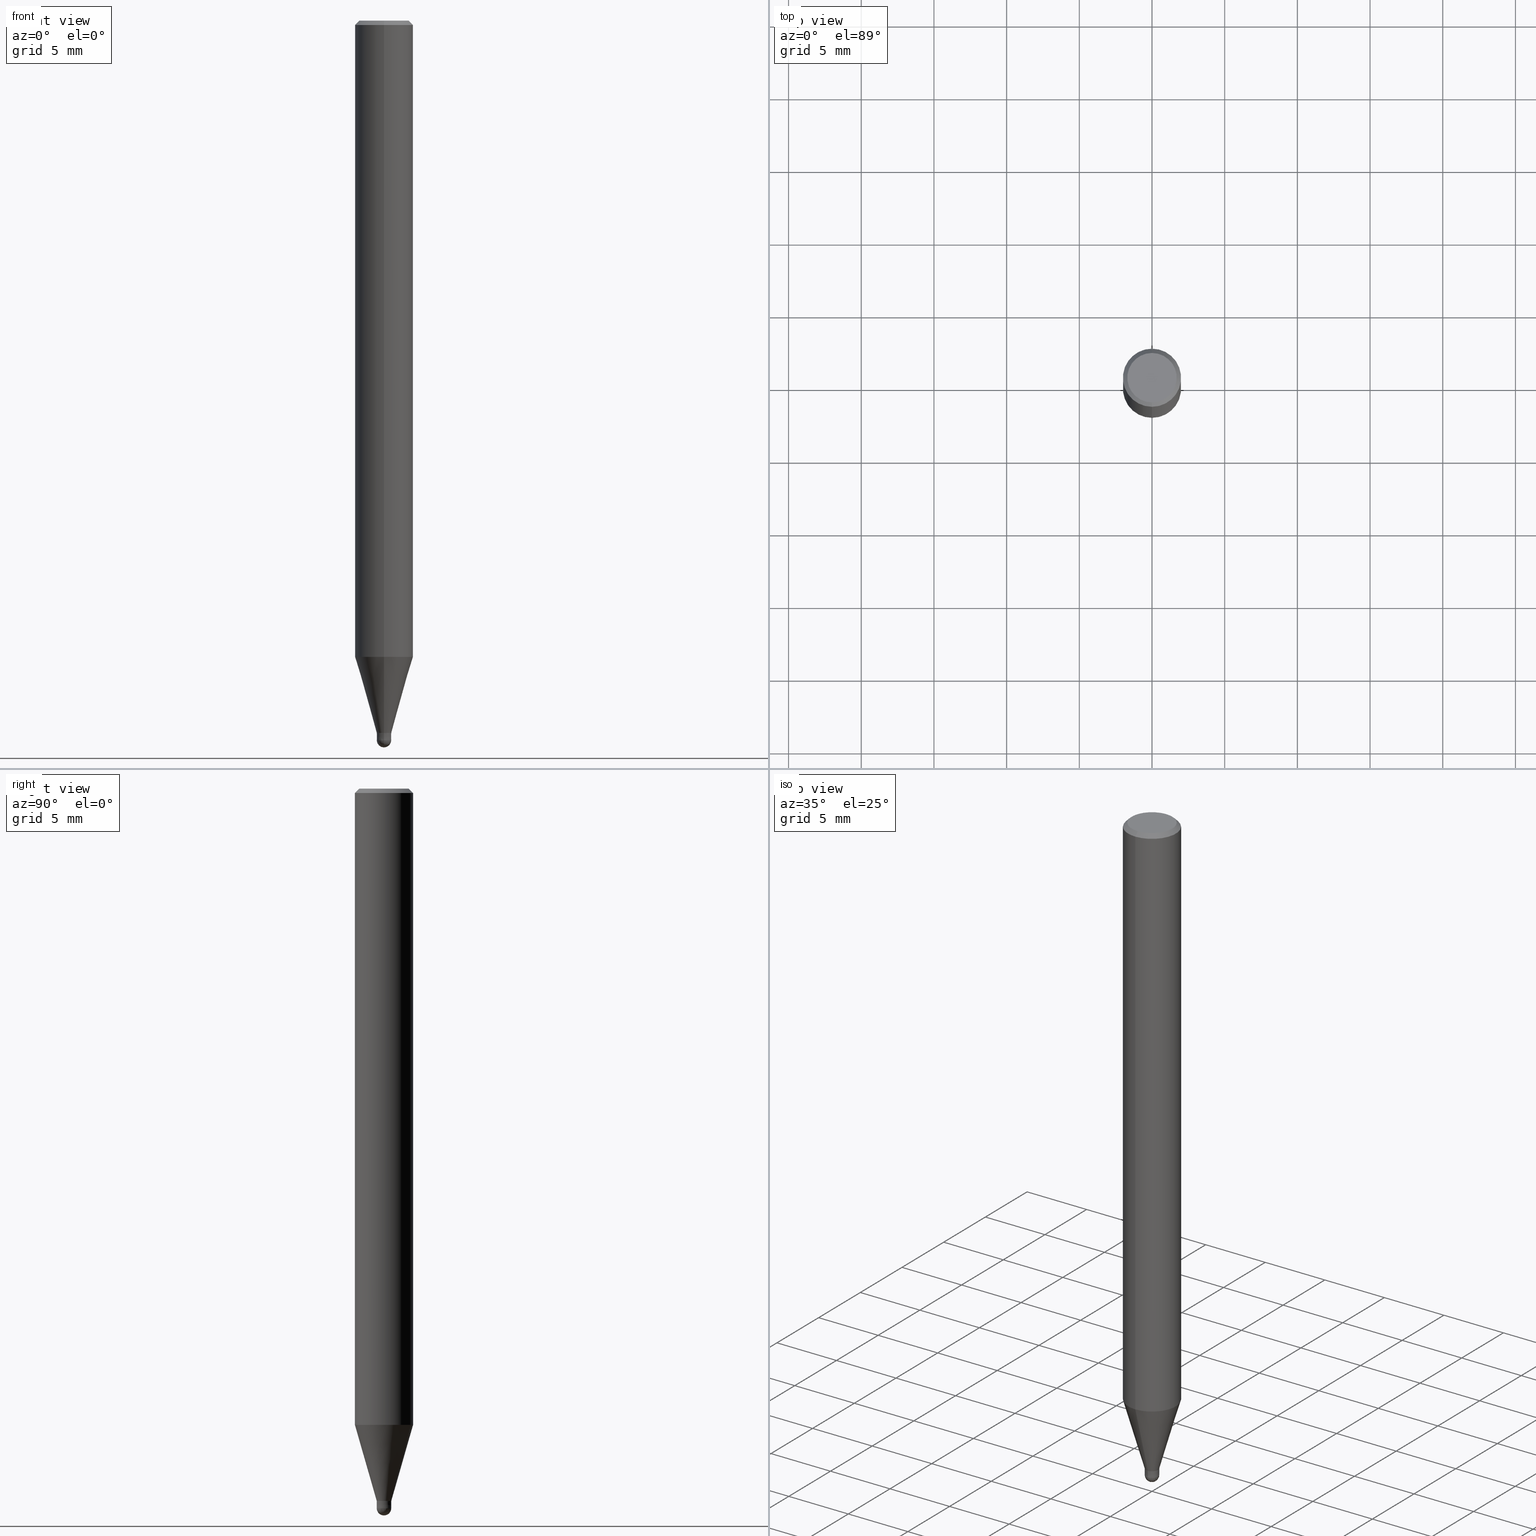
[diagram: canonical four-view strip — front | top / right | iso, engineering-drawing reading convention]
A machine part, canonical four-view strip (front | top / right | iso — engineering-drawing reading convention). The complete STEP part file that produces these views, byte-faithful:
ISO-10303-21;
HEADER;
FILE_DESCRIPTION(('no description'),'unknown implementation level');
FILE_NAME('HSB2010-0100-Huellk.stp','  ',('CIMSOURCE GmbH'),('CADClick - KiM GmbH - www.kimweb.de'),'unknown preprocess','ACIS','unknown authorization');
FILE_SCHEMA(('automotive_design'));
ENDSEC;
DATA;
#1=MECHANICAL_DESIGN_GEOMETRIC_PRESENTATION_REPRESENTATION(' ',(#14,#15,#16,#17,#18,#19,#20,#21,#22,#23,#24,#25,#26,#27,#28,#29,#30,#31,#32,#33,#34,#35,#36,#37,#38,#39,#40,#41,#42,#43,#44,#45,#46,#47,#48,#49,#50,#51,#52,#53,#54,#55,#56,#57,#58,#59,#60,#61,#62,#63,#64,#65,#66),#10);
#2=PRODUCT_DEFINITION_CONTEXT('',#67,'design');
#3=APPLICATION_PROTOCOL_DEFINITION('INTERNATIONAL STANDARD','automotive_design',1994,#67);
#4=PRODUCT_CATEGORY_RELATIONSHIP('NONE','NONE',#68,#69);
#5=SHAPE_DEFINITION_REPRESENTATION(#70,#71);
#6=PRODUCT_DEFINITION_CONTEXT('',#72,'design');
#7=APPLICATION_PROTOCOL_DEFINITION('INTERNATIONAL STANDARD','automotive_design',1994,#72);
#8=PRODUCT_CATEGORY_RELATIONSHIP('NONE','NONE',#73,#74);
#9=SHAPE_DEFINITION_REPRESENTATION(#75,#76);
#10= (GEOMETRIC_REPRESENTATION_CONTEXT(3)GLOBAL_UNCERTAINTY_ASSIGNED_CONTEXT((#79))GLOBAL_UNIT_ASSIGNED_CONTEXT((#81,#82,#83))REPRESENTATION_CONTEXT('NONE','WORKSPACE'));
#14=STYLED_ITEM('',(#85),#86);
#15=STYLED_ITEM('',(#87),#88);
#16=STYLED_ITEM('',(#89),#90);
#17=STYLED_ITEM('',(#91),#92);
#18=STYLED_ITEM('',(#93),#94);
#19=STYLED_ITEM('',(#95),#96);
#20=STYLED_ITEM('',(#97),#98);
#21=STYLED_ITEM('',(#99),#100);
#22=STYLED_ITEM('',(#101),#102);
#23=STYLED_ITEM('',(#103),#104);
#24=STYLED_ITEM('',(#105),#106);
#25=STYLED_ITEM('',(#107),#108);
#26=STYLED_ITEM('',(#109),#110);
#27=STYLED_ITEM('',(#111),#112);
#28=STYLED_ITEM('',(#113),#114);
#29=STYLED_ITEM('',(#115),#116);
#30=STYLED_ITEM('',(#117),#118);
#31=STYLED_ITEM('',(#119),#120);
#32=STYLED_ITEM('',(#121),#122);
#33=STYLED_ITEM('',(#123),#124);
#34=STYLED_ITEM('',(#125),#126);
#35=STYLED_ITEM('',(#127),#128);
#36=STYLED_ITEM('',(#129),#130);
#37=STYLED_ITEM('',(#131),#132);
#38=STYLED_ITEM('',(#133),#134);
#39=STYLED_ITEM('',(#135),#136);
#40=STYLED_ITEM('',(#137),#138);
#41=STYLED_ITEM('',(#139),#140);
#42=STYLED_ITEM('',(#141),#142);
#43=STYLED_ITEM('',(#143),#144);
#44=STYLED_ITEM('',(#145),#146);
#45=STYLED_ITEM('',(#147),#148);
#46=STYLED_ITEM('',(#149),#150);
#47=STYLED_ITEM('',(#151),#152);
#48=STYLED_ITEM('',(#153),#154);
#49=STYLED_ITEM('',(#155),#156);
#50=STYLED_ITEM('',(#157),#158);
#51=STYLED_ITEM('',(#159),#160);
#52=STYLED_ITEM('',(#161),#162);
#53=STYLED_ITEM('',(#163),#164);
#54=STYLED_ITEM('',(#165),#166);
#55=STYLED_ITEM('',(#167),#168);
#56=STYLED_ITEM('',(#169),#170);
#57=STYLED_ITEM('',(#171),#172);
#58=STYLED_ITEM('',(#173),#174);
#59=STYLED_ITEM('',(#175),#176);
#60=STYLED_ITEM('',(#177),#178);
#61=STYLED_ITEM('',(#179),#180);
#62=STYLED_ITEM('',(#181),#182);
#63=STYLED_ITEM('',(#183),#184);
#64=STYLED_ITEM('',(#185),#186);
#65=STYLED_ITEM('',(#187),#188);
#66=STYLED_ITEM('',(#189),#190);
#67=APPLICATION_CONTEXT(' ');
#68=PRODUCT_CATEGORY('part','NONE');
#69=PRODUCT_RELATED_PRODUCT_CATEGORY('detail',' ',(#191));
#70=PRODUCT_DEFINITION_SHAPE('NONE','NONE',#192);
#71=ADVANCED_BREP_SHAPE_REPRESENTATION('1',(#140,#193),#10);
#72=APPLICATION_CONTEXT(' ');
#73=PRODUCT_CATEGORY('part','NONE');
#74=PRODUCT_RELATED_PRODUCT_CATEGORY('detail',' ',(#194));
#75=PRODUCT_DEFINITION_SHAPE('NONE','NONE',#195);
#76=ADVANCED_BREP_SHAPE_REPRESENTATION('2',(#128,#196),#10);
#79=UNCERTAINTY_MEASURE_WITH_UNIT(LENGTH_MEASURE(1.0E-006),#81,'','');
#81= (CONVERSION_BASED_UNIT('MILLIMETRE',#199)LENGTH_UNIT()NAMED_UNIT(#202));
#82= (NAMED_UNIT(#204)PLANE_ANGLE_UNIT()SI_UNIT($,.RADIAN.));
#83= (NAMED_UNIT(#204)SOLID_ANGLE_UNIT()SI_UNIT($,.STERADIAN.));
#85=PRESENTATION_STYLE_ASSIGNMENT((#210));
#86=EDGE_CURVE('',#162,#144,#211,.T.);
#87=PRESENTATION_STYLE_ASSIGNMENT((#212));
#88=VERTEX_POINT('',#213);
#89=PRESENTATION_STYLE_ASSIGNMENT((#214));
#90=EDGE_CURVE('',#118,#134,#215,.T.);
#91=PRESENTATION_STYLE_ASSIGNMENT((#216));
#92=ADVANCED_FACE('',(#217),#218,.T.);
#93=PRESENTATION_STYLE_ASSIGNMENT((#219));
#94=VERTEX_POINT('',#220);
#95=PRESENTATION_STYLE_ASSIGNMENT((#221));
#96=ADVANCED_FACE('',(#222),#223,.T.);
#97=PRESENTATION_STYLE_ASSIGNMENT((#224));
#98=VERTEX_POINT('',#225);
#99=PRESENTATION_STYLE_ASSIGNMENT((#226));
#100=ADVANCED_FACE('',(#227),#228,.T.);
#101=PRESENTATION_STYLE_ASSIGNMENT((#229));
#102=EDGE_CURVE('',#122,#94,#230,.T.);
#103=PRESENTATION_STYLE_ASSIGNMENT((#231));
#104=VERTEX_POINT('',#232);
#105=PRESENTATION_STYLE_ASSIGNMENT((#233));
#106=EDGE_CURVE('',#122,#98,#234,.T.);
#107=PRESENTATION_STYLE_ASSIGNMENT((#235));
#108=VERTEX_POINT('',#236);
#109=PRESENTATION_STYLE_ASSIGNMENT((#237));
#110=EDGE_CURVE('',#144,#174,#238,.T.);
#111=PRESENTATION_STYLE_ASSIGNMENT((#239));
#112=EDGE_CURVE('',#104,#138,#240,.T.);
#113=PRESENTATION_STYLE_ASSIGNMENT((#241));
#114=EDGE_CURVE('',#94,#168,#242,.T.);
#115=PRESENTATION_STYLE_ASSIGNMENT((#243));
#116=ADVANCED_FACE('',(#244),#245,.T.);
#117=PRESENTATION_STYLE_ASSIGNMENT((#246));
#118=VERTEX_POINT('',#247);
#119=PRESENTATION_STYLE_ASSIGNMENT((#248));
#120=EDGE_CURVE('',#124,#108,#249,.T.);
#121=PRESENTATION_STYLE_ASSIGNMENT((#250));
#122=VERTEX_POINT('',#251);
#123=PRESENTATION_STYLE_ASSIGNMENT((#252));
#124=VERTEX_POINT('',#253);
#125=PRESENTATION_STYLE_ASSIGNMENT((#254));
#126=ADVANCED_FACE('',(#255),#256,.T.);
#127=PRESENTATION_STYLE_ASSIGNMENT((#257));
#128=MANIFOLD_SOLID_BREP('2',#258);
#129=PRESENTATION_STYLE_ASSIGNMENT((#259));
#130=ADVANCED_FACE('',(#260),#261,.T.);
#131=PRESENTATION_STYLE_ASSIGNMENT((#262));
#132=EDGE_CURVE('',#108,#124,#263,.T.);
#133=PRESENTATION_STYLE_ASSIGNMENT((#264));
#134=VERTEX_POINT('',#265);
#135=PRESENTATION_STYLE_ASSIGNMENT((#266));
#136=EDGE_CURVE('',#134,#118,#267,.T.);
#137=PRESENTATION_STYLE_ASSIGNMENT((#268));
#138=VERTEX_POINT('',#269);
#139=PRESENTATION_STYLE_ASSIGNMENT((#270));
#140=MANIFOLD_SOLID_BREP('1',#271);
#141=PRESENTATION_STYLE_ASSIGNMENT((#272));
#142=EDGE_CURVE('',#108,#134,#273,.T.);
#143=PRESENTATION_STYLE_ASSIGNMENT((#274));
#144=VERTEX_POINT('',#275);
#145=PRESENTATION_STYLE_ASSIGNMENT((#276));
#146=EDGE_CURVE('',#174,#88,#277,.T.);
#147=PRESENTATION_STYLE_ASSIGNMENT((#278));
#148=ADVANCED_FACE('',(#279),#280,.T.);
#149=PRESENTATION_STYLE_ASSIGNMENT((#281));
#150=EDGE_CURVE('',#118,#124,#282,.T.);
#151=PRESENTATION_STYLE_ASSIGNMENT((#283));
#152=EDGE_CURVE('',#168,#98,#284,.T.);
#153=PRESENTATION_STYLE_ASSIGNMENT((#285));
#154=EDGE_CURVE('',#98,#122,#286,.T.);
#155=PRESENTATION_STYLE_ASSIGNMENT((#287));
#156=EDGE_CURVE('',#88,#174,#288,.T.);
#157=PRESENTATION_STYLE_ASSIGNMENT((#289));
#158=ADVANCED_FACE('',(#290),#291,.T.);
#159=PRESENTATION_STYLE_ASSIGNMENT((#292));
#160=EDGE_CURVE('',#138,#88,#293,.T.);
#161=PRESENTATION_STYLE_ASSIGNMENT((#294));
#162=VERTEX_POINT('',#295);
#163=PRESENTATION_STYLE_ASSIGNMENT((#296));
#164=EDGE_CURVE('',#88,#162,#297,.T.);
#165=PRESENTATION_STYLE_ASSIGNMENT((#298));
#166=EDGE_CURVE('',#144,#162,#299,.T.);
#167=PRESENTATION_STYLE_ASSIGNMENT((#300));
#168=VERTEX_POINT('',#301);
#169=PRESENTATION_STYLE_ASSIGNMENT((#302));
#170=ADVANCED_FACE('',(#303),#304,.T.);
#171=PRESENTATION_STYLE_ASSIGNMENT((#305));
#172=ADVANCED_FACE('',(#306),#307,.T.);
#173=PRESENTATION_STYLE_ASSIGNMENT((#308));
#174=VERTEX_POINT('',#309);
#175=PRESENTATION_STYLE_ASSIGNMENT((#310));
#176=EDGE_CURVE('',#174,#104,#311,.T.);
#177=PRESENTATION_STYLE_ASSIGNMENT((#312));
#178=ADVANCED_FACE('',(#313),#314,.T.);
#179=PRESENTATION_STYLE_ASSIGNMENT((#315));
#180=EDGE_CURVE('',#168,#94,#316,.T.);
#181=PRESENTATION_STYLE_ASSIGNMENT((#317));
#182=EDGE_CURVE('',#168,#94,#318,.T.);
#183=PRESENTATION_STYLE_ASSIGNMENT((#319));
#184=ADVANCED_FACE('',(#320,#321),#322,.T.);
#185=PRESENTATION_STYLE_ASSIGNMENT((#323));
#186=ADVANCED_FACE('',(#324),#325,.T.);
#187=PRESENTATION_STYLE_ASSIGNMENT((#326));
#188=EDGE_CURVE('',#138,#104,#327,.T.);
#189=PRESENTATION_STYLE_ASSIGNMENT((#328));
#190=ADVANCED_FACE('',(#329),#330,.T.);
#191=PRODUCT('1','1','PART-1-DESC',(#331));
#192=PRODUCT_DEFINITION('NONE','NONE',#332,#2);
#193=AXIS2_PLACEMENT_3D('',#333,#334,#335);
#194=PRODUCT('2','2','PART-2-DESC',(#336));
#195=PRODUCT_DEFINITION('NONE','NONE',#337,#6);
#196=AXIS2_PLACEMENT_3D('',#338,#339,#340);
#199=LENGTH_MEASURE_WITH_UNIT(LENGTH_MEASURE(1.0),#341);
#202=DIMENSIONAL_EXPONENTS(1.0,0.0,0.0,0.0,0.0,0.0,0.0);
#204=DIMENSIONAL_EXPONENTS(0.0,0.0,0.0,0.0,0.0,0.0,0.0);
#210=CURVE_STYLE('',#342,POSITIVE_LENGTH_MEASURE(1.0E-006),#343);
#211=CIRCLE('',#344,2.0);
#212=POINT_STYLE(' ',#345,POSITIVE_LENGTH_MEASURE(1.0E-006),#346);
#213=CARTESIAN_POINT('',(0.0,2.0,-0.299999999999997));
#214=CURVE_STYLE('',#347,POSITIVE_LENGTH_MEASURE(1.0E-006),#348);
#215=CIRCLE('',#349,1.99995);
#216=SURFACE_STYLE_USAGE(.BOTH.,#350);
#217=FACE_OUTER_BOUND('',#351,.T.);
#218=CONICAL_SURFACE('',#352,0.49995,0.000199999997333311);
#219=POINT_STYLE(' ',#353,POSITIVE_LENGTH_MEASURE(1.0E-006),#354);
#220=CARTESIAN_POINT('',(0.0,0.5,-49.5));
#221=SURFACE_STYLE_USAGE(.BOTH.,#355);
#222=FACE_OUTER_BOUND('',#356,.T.);
#223=CONICAL_SURFACE('',#357,1.24995,0.279258842899557);
#224=POINT_STYLE(' ',#358,POSITIVE_LENGTH_MEASURE(1.0E-006),#359);
#225=CARTESIAN_POINT('',(6.12180716275806E-017,-0.4999,-49.0));
#226=SURFACE_STYLE_USAGE(.BOTH.,#360);
#227=FACE_OUTER_BOUND('',#361,.T.);
#228=CONICAL_SURFACE('',#362,1.85,0.785398163397453);
#229=CURVE_STYLE('',#363,POSITIVE_LENGTH_MEASURE(1.0E-006),#364);
#230=LINE('',#365,#366);
#231=POINT_STYLE(' ',#367,POSITIVE_LENGTH_MEASURE(1.0E-006),#368);
#232=CARTESIAN_POINT('',(2.08183080149804E-016,-1.7,0.0));
#233=CURVE_STYLE('',#369,POSITIVE_LENGTH_MEASURE(1.0E-006),#370);
#234=CIRCLE('',#371,0.4999);
#235=POINT_STYLE(' ',#372,POSITIVE_LENGTH_MEASURE(1.0E-006),#373);
#236=CARTESIAN_POINT('',(6.12241946593498E-017,-0.49995,-49.0));
#237=CURVE_STYLE('',#374,POSITIVE_LENGTH_MEASURE(1.0E-006),#375);
#238=LINE('',#376,#377);
#239=CURVE_STYLE('',#378,POSITIVE_LENGTH_MEASURE(1.0E-006),#379);
#240=CIRCLE('',#380,1.7);
#241=CURVE_STYLE('',#381,POSITIVE_LENGTH_MEASURE(1.0E-006),#382);
#242=CIRCLE('',#383,0.5);
#243=SURFACE_STYLE_USAGE(.BOTH.,#384);
#244=FACE_OUTER_BOUND('',#385,.T.);
#245=PLANE('',#386);
#246=POINT_STYLE(' ',#387,POSITIVE_LENGTH_MEASURE(1.0E-006),#388);
#247=CARTESIAN_POINT('',(0.0,1.99995,-43.769));
#248=CURVE_STYLE('',#389,POSITIVE_LENGTH_MEASURE(1.0E-006),#390);
#249=CIRCLE('',#391,0.49995);
#250=POINT_STYLE(' ',#392,POSITIVE_LENGTH_MEASURE(1.0E-006),#393);
#251=CARTESIAN_POINT('',(0.0,0.4999,-49.0));
#252=POINT_STYLE(' ',#394,POSITIVE_LENGTH_MEASURE(1.0E-006),#395);
#253=CARTESIAN_POINT('',(0.0,0.49995,-49.0));
#254=SURFACE_STYLE_USAGE(.BOTH.,#396);
#255=FACE_OUTER_BOUND('',#397,.T.);
#256=CONICAL_SURFACE('',#398,1.24995,0.279258842899557);
#257=SURFACE_STYLE_USAGE(.BOTH.,#399);
#258=CLOSED_SHELL('',(#186,#190,#158,#92,#178));
#259=SURFACE_STYLE_USAGE(.BOTH.,#400);
#260=FACE_OUTER_BOUND('',#401,.T.);
#261=CYLINDRICAL_SURFACE('',#402,2.0);
#262=CURVE_STYLE('',#403,POSITIVE_LENGTH_MEASURE(1.0E-006),#404);
#263=CIRCLE('',#405,0.49995);
#264=POINT_STYLE(' ',#406,POSITIVE_LENGTH_MEASURE(1.0E-006),#407);
#265=CARTESIAN_POINT('',(2.44915147732706E-016,-1.99995,-43.769));
#266=CURVE_STYLE('',#408,POSITIVE_LENGTH_MEASURE(1.0E-006),#409);
#267=CIRCLE('',#410,1.99995);
#268=POINT_STYLE(' ',#411,POSITIVE_LENGTH_MEASURE(1.0E-006),#412);
#269=CARTESIAN_POINT('',(0.0,1.7,0.0));
#270=SURFACE_STYLE_USAGE(.BOTH.,#413);
#271=CLOSED_SHELL('',(#126,#172,#100,#184,#170,#148,#130,#96,#116));
#272=CURVE_STYLE('',#414,POSITIVE_LENGTH_MEASURE(1.0E-006),#415);
#273=LINE('',#416,#417);
#274=POINT_STYLE(' ',#418,POSITIVE_LENGTH_MEASURE(1.0E-006),#419);
#275=CARTESIAN_POINT('',(2.44921270764475E-016,-2.0,-43.769));
#276=CURVE_STYLE('',#420,POSITIVE_LENGTH_MEASURE(1.0E-006),#421);
#277=CIRCLE('',#422,2.0);
#278=SURFACE_STYLE_USAGE(.BOTH.,#423);
#279=FACE_OUTER_BOUND('',#424,.T.);
#280=CONICAL_SURFACE('',#425,1.85,0.785398163397453);
#281=CURVE_STYLE('',#426,POSITIVE_LENGTH_MEASURE(1.0E-006),#427);
#282=LINE('',#428,#429);
#283=CURVE_STYLE('',#430,POSITIVE_LENGTH_MEASURE(1.0E-006),#431);
#284=LINE('',#432,#433);
#285=CURVE_STYLE('',#434,POSITIVE_LENGTH_MEASURE(1.0E-006),#435);
#286=CIRCLE('',#436,0.4999);
#287=CURVE_STYLE('',#437,POSITIVE_LENGTH_MEASURE(1.0E-006),#438);
#288=CIRCLE('',#439,2.0);
#289=SURFACE_STYLE_USAGE(.BOTH.,#440);
#290=FACE_OUTER_BOUND('',#441,.T.);
#291=PLANE('',#442);
#292=CURVE_STYLE('',#443,POSITIVE_LENGTH_MEASURE(1.0E-006),#444);
#293=LINE('',#445,#446);
#294=POINT_STYLE(' ',#447,POSITIVE_LENGTH_MEASURE(1.0E-006),#448);
#295=CARTESIAN_POINT('',(0.0,2.0,-43.769));
#296=CURVE_STYLE('',#449,POSITIVE_LENGTH_MEASURE(1.0E-006),#450);
#297=LINE('',#451,#452);
#298=CURVE_STYLE('',#453,POSITIVE_LENGTH_MEASURE(1.0E-006),#454);
#299=CIRCLE('',#455,2.0);
#300=POINT_STYLE(' ',#456,POSITIVE_LENGTH_MEASURE(1.0E-006),#457);
#301=CARTESIAN_POINT('',(6.12303176911189E-017,-0.5,-49.5));
#302=SURFACE_STYLE_USAGE(.BOTH.,#458);
#303=FACE_OUTER_BOUND('',#459,.T.);
#304=PLANE('',#460);
#305=SURFACE_STYLE_USAGE(.BOTH.,#461);
#306=FACE_OUTER_BOUND('',#462,.T.);
#307=CYLINDRICAL_SURFACE('',#463,2.0);
#308=POINT_STYLE(' ',#464,POSITIVE_LENGTH_MEASURE(1.0E-006),#465);
#309=CARTESIAN_POINT('',(2.44921270764475E-016,-2.0,-0.299999999999997));
#310=CURVE_STYLE('',#466,POSITIVE_LENGTH_MEASURE(1.0E-006),#467);
#311=LINE('',#468,#469);
#312=SURFACE_STYLE_USAGE(.BOTH.,#470);
#313=FACE_OUTER_BOUND('',#471,.T.);
#314=SPHERICAL_SURFACE('',#472,0.5);
#315=CURVE_STYLE('',#473,POSITIVE_LENGTH_MEASURE(1.0E-006),#474);
#316=CIRCLE('',#475,0.5);
#317=CURVE_STYLE('',#476,POSITIVE_LENGTH_MEASURE(1.0E-006),#477);
#318=CIRCLE('',#478,0.5);
#319=SURFACE_STYLE_USAGE(.BOTH.,#479);
#320=FACE_OUTER_BOUND('',#480,.T.);
#321=FACE_BOUND('',#481,.T.);
#322=PLANE('',#482);
#323=SURFACE_STYLE_USAGE(.BOTH.,#483);
#324=FACE_OUTER_BOUND('',#484,.T.);
#325=SPHERICAL_SURFACE('',#485,0.5);
#326=CURVE_STYLE('',#486,POSITIVE_LENGTH_MEASURE(1.0E-006),#487);
#327=CIRCLE('',#488,1.7);
#328=SURFACE_STYLE_USAGE(.BOTH.,#489);
#329=FACE_OUTER_BOUND('',#490,.T.);
#330=CONICAL_SURFACE('',#491,0.49995,0.000199999997333311);
#331=PRODUCT_CONTEXT('',#67,'mechanical');
#332=PRODUCT_DEFINITION_FORMATION_WITH_SPECIFIED_SOURCE(' ','NONE',#191,.NOT_KNOWN.);
#333=CARTESIAN_POINT('',(0.0,0.0,0.0));
#334=DIRECTION('',(0.0,0.0,1.0));
#335=DIRECTION('',(1.0,0.0,0.0));
#336=PRODUCT_CONTEXT('',#72,'mechanical');
#337=PRODUCT_DEFINITION_FORMATION_WITH_SPECIFIED_SOURCE(' ','NONE',#194,.NOT_KNOWN.);
#338=CARTESIAN_POINT('',(0.0,0.0,0.0));
#339=DIRECTION('',(0.0,0.0,1.0));
#340=DIRECTION('',(1.0,0.0,0.0));
#341= (NAMED_UNIT(#202)LENGTH_UNIT()SI_UNIT(.MILLI.,.METRE.));
#342=DRAUGHTING_PRE_DEFINED_CURVE_FONT('continuous');
#343=COLOUR_RGB('',0.498039215803146,0.498039215803146,0.498039215803146);
#344=AXIS2_PLACEMENT_3D('',#493,#494,#495);
#345=PRE_DEFINED_MARKER('');
#346=COLOUR_RGB('',0.498039215803146,0.498039215803146,0.498039215803146);
#347=DRAUGHTING_PRE_DEFINED_CURVE_FONT('continuous');
#348=COLOUR_RGB('',0.498039215803146,0.498039215803146,0.498039215803146);
#349=AXIS2_PLACEMENT_3D('',#496,#497,#498);
#350=SURFACE_SIDE_STYLE('',(#499));
#351=EDGE_LOOP('',(#500,#501,#502,#503));
#352=AXIS2_PLACEMENT_3D('',#504,#505,#506);
#353=PRE_DEFINED_MARKER('');
#354=COLOUR_RGB('',0.800000011920929,0.800000011920929,0.800000011920929);
#355=SURFACE_SIDE_STYLE('',(#507));
#356=EDGE_LOOP('',(#508,#509,#510,#511));
#357=AXIS2_PLACEMENT_3D('',#512,#513,#514);
#358=PRE_DEFINED_MARKER('');
#359=COLOUR_RGB('',0.800000011920929,0.800000011920929,0.800000011920929);
#360=SURFACE_SIDE_STYLE('',(#515));
#361=EDGE_LOOP('',(#516,#517,#518,#519));
#362=AXIS2_PLACEMENT_3D('',#520,#521,#522);
#363=DRAUGHTING_PRE_DEFINED_CURVE_FONT('continuous');
#364=COLOUR_RGB('',0.800000011920929,0.800000011920929,0.800000011920929);
#365=CARTESIAN_POINT('',(-6.12241946593498E-017,0.49995,-49.25));
#366=VECTOR('',#523,1.0);
#367=PRE_DEFINED_MARKER('');
#368=COLOUR_RGB('',0.498039215803146,0.498039215803146,0.498039215803146);
#369=DRAUGHTING_PRE_DEFINED_CURVE_FONT('continuous');
#370=COLOUR_RGB('',0.800000011920929,0.800000011920929,0.800000011920929);
#371=AXIS2_PLACEMENT_3D('',#524,#525,#526);
#372=PRE_DEFINED_MARKER('');
#373=COLOUR_RGB('',0.498039215803146,0.498039215803146,0.498039215803146);
#374=DRAUGHTING_PRE_DEFINED_CURVE_FONT('continuous');
#375=COLOUR_RGB('',0.498039215803146,0.498039215803146,0.498039215803146);
#376=CARTESIAN_POINT('',(2.44921270764475E-016,-2.0,-22.0345));
#377=VECTOR('',#527,1.0);
#378=DRAUGHTING_PRE_DEFINED_CURVE_FONT('continuous');
#379=COLOUR_RGB('',0.498039215803146,0.498039215803146,0.498039215803146);
#380=AXIS2_PLACEMENT_3D('',#528,#529,#530);
#381=DRAUGHTING_PRE_DEFINED_CURVE_FONT('continuous');
#382=COLOUR_RGB('',0.800000011920929,0.800000011920929,0.800000011920929);
#383=AXIS2_PLACEMENT_3D('',#531,#532,#533);
#384=SURFACE_SIDE_STYLE('',(#534));
#385=EDGE_LOOP('',(#535,#536));
#386=AXIS2_PLACEMENT_3D('',#537,#538,#539);
#387=PRE_DEFINED_MARKER('');
#388=COLOUR_RGB('',0.498039215803146,0.498039215803146,0.498039215803146);
#389=DRAUGHTING_PRE_DEFINED_CURVE_FONT('continuous');
#390=COLOUR_RGB('',0.498039215803146,0.498039215803146,0.498039215803146);
#391=AXIS2_PLACEMENT_3D('',#540,#541,#542);
#392=PRE_DEFINED_MARKER('');
#393=COLOUR_RGB('',0.800000011920929,0.800000011920929,0.800000011920929);
#394=PRE_DEFINED_MARKER('');
#395=COLOUR_RGB('',0.498039215803146,0.498039215803146,0.498039215803146);
#396=SURFACE_SIDE_STYLE('',(#543));
#397=EDGE_LOOP('',(#544,#545,#546,#547));
#398=AXIS2_PLACEMENT_3D('',#548,#549,#550);
#399=SURFACE_SIDE_STYLE('',(#551));
#400=SURFACE_SIDE_STYLE('',(#552));
#401=EDGE_LOOP('',(#553,#554,#555,#556));
#402=AXIS2_PLACEMENT_3D('',#557,#558,#559);
#403=DRAUGHTING_PRE_DEFINED_CURVE_FONT('continuous');
#404=COLOUR_RGB('',0.498039215803146,0.498039215803146,0.498039215803146);
#405=AXIS2_PLACEMENT_3D('',#560,#561,#562);
#406=PRE_DEFINED_MARKER('');
#407=COLOUR_RGB('',0.498039215803146,0.498039215803146,0.498039215803146);
#408=DRAUGHTING_PRE_DEFINED_CURVE_FONT('continuous');
#409=COLOUR_RGB('',0.498039215803146,0.498039215803146,0.498039215803146);
#410=AXIS2_PLACEMENT_3D('',#563,#564,#565);
#411=PRE_DEFINED_MARKER('');
#412=COLOUR_RGB('',0.498039215803146,0.498039215803146,0.498039215803146);
#413=SURFACE_SIDE_STYLE('',(#566));
#414=DRAUGHTING_PRE_DEFINED_CURVE_FONT('continuous');
#415=COLOUR_RGB('',0.498039215803146,0.498039215803146,0.498039215803146);
#416=CARTESIAN_POINT('',(1.53069671196028E-016,-1.24995,-46.3845));
#417=VECTOR('',#567,1.0);
#418=PRE_DEFINED_MARKER('');
#419=COLOUR_RGB('',0.498039215803146,0.498039215803146,0.498039215803146);
#420=DRAUGHTING_PRE_DEFINED_CURVE_FONT('continuous');
#421=COLOUR_RGB('',0.498039215803146,0.498039215803146,0.498039215803146);
#422=AXIS2_PLACEMENT_3D('',#568,#569,#570);
#423=SURFACE_SIDE_STYLE('',(#571));
#424=EDGE_LOOP('',(#572,#573,#574,#575));
#425=AXIS2_PLACEMENT_3D('',#576,#577,#578);
#426=DRAUGHTING_PRE_DEFINED_CURVE_FONT('continuous');
#427=COLOUR_RGB('',0.498039215803146,0.498039215803146,0.498039215803146);
#428=CARTESIAN_POINT('',(-1.53069671196028E-016,1.24995,-46.3845));
#429=VECTOR('',#579,1.0);
#430=DRAUGHTING_PRE_DEFINED_CURVE_FONT('continuous');
#431=COLOUR_RGB('',0.800000011920929,0.800000011920929,0.800000011920929);
#432=CARTESIAN_POINT('',(6.12241946593498E-017,-0.49995,-49.25));
#433=VECTOR('',#580,1.0);
#434=DRAUGHTING_PRE_DEFINED_CURVE_FONT('continuous');
#435=COLOUR_RGB('',0.800000011920929,0.800000011920929,0.800000011920929);
#436=AXIS2_PLACEMENT_3D('',#581,#582,#583);
#437=DRAUGHTING_PRE_DEFINED_CURVE_FONT('continuous');
#438=COLOUR_RGB('',0.498039215803146,0.498039215803146,0.498039215803146);
#439=AXIS2_PLACEMENT_3D('',#584,#585,#586);
#440=SURFACE_SIDE_STYLE('',(#587));
#441=EDGE_LOOP('',(#588,#589));
#442=AXIS2_PLACEMENT_3D('',#590,#591,#592);
#443=DRAUGHTING_PRE_DEFINED_CURVE_FONT('continuous');
#444=COLOUR_RGB('',0.498039215803146,0.498039215803146,0.498039215803146);
#445=CARTESIAN_POINT('',(-2.2655217545714E-016,1.85,-0.149999999999999));
#446=VECTOR('',#593,1.0);
#447=PRE_DEFINED_MARKER('');
#448=COLOUR_RGB('',0.498039215803146,0.498039215803146,0.498039215803146);
#449=DRAUGHTING_PRE_DEFINED_CURVE_FONT('continuous');
#450=COLOUR_RGB('',0.498039215803146,0.498039215803146,0.498039215803146);
#451=CARTESIAN_POINT('',(-2.44921270764475E-016,2.0,-22.0345));
#452=VECTOR('',#594,1.0);
#453=DRAUGHTING_PRE_DEFINED_CURVE_FONT('continuous');
#454=COLOUR_RGB('',0.498039215803146,0.498039215803146,0.498039215803146);
#455=AXIS2_PLACEMENT_3D('',#595,#596,#597);
#456=PRE_DEFINED_MARKER('');
#457=COLOUR_RGB('',0.800000011920929,0.800000011920929,0.800000011920929);
#458=SURFACE_SIDE_STYLE('',(#598));
#459=EDGE_LOOP('',(#599,#600));
#460=AXIS2_PLACEMENT_3D('',#601,#602,#603);
#461=SURFACE_SIDE_STYLE('',(#604));
#462=EDGE_LOOP('',(#605,#606,#607,#608));
#463=AXIS2_PLACEMENT_3D('',#609,#610,#611);
#464=PRE_DEFINED_MARKER('');
#465=COLOUR_RGB('',0.498039215803146,0.498039215803146,0.498039215803146);
#466=DRAUGHTING_PRE_DEFINED_CURVE_FONT('continuous');
#467=COLOUR_RGB('',0.498039215803146,0.498039215803146,0.498039215803146);
#468=CARTESIAN_POINT('',(2.2655217545714E-016,-1.85,-0.149999999999999));
#469=VECTOR('',#612,1.0);
#470=SURFACE_SIDE_STYLE('',(#613));
#471=EDGE_LOOP('',(#614,#615));
#472=AXIS2_PLACEMENT_3D('',#616,#617,#618);
#473=DRAUGHTING_PRE_DEFINED_CURVE_FONT('continuous');
#474=COLOUR_RGB('',0.800000011920929,0.800000011920929,0.800000011920929);
#475=AXIS2_PLACEMENT_3D('',#619,#620,#621);
#476=DRAUGHTING_PRE_DEFINED_CURVE_FONT('continuous');
#477=COLOUR_RGB('',0.800000011920929,0.800000011920929,0.800000011920929);
#478=AXIS2_PLACEMENT_3D('',#622,#623,#624);
#479=SURFACE_SIDE_STYLE('',(#625));
#480=EDGE_LOOP('',(#626,#627));
#481=EDGE_LOOP('',(#628,#629));
#482=AXIS2_PLACEMENT_3D('',#630,#631,#632);
#483=SURFACE_SIDE_STYLE('',(#633));
#484=EDGE_LOOP('',(#634,#635));
#485=AXIS2_PLACEMENT_3D('',#636,#637,#638);
#486=DRAUGHTING_PRE_DEFINED_CURVE_FONT('continuous');
#487=COLOUR_RGB('',0.498039215803146,0.498039215803146,0.498039215803146);
#488=AXIS2_PLACEMENT_3D('',#639,#640,#641);
#489=SURFACE_SIDE_STYLE('',(#642));
#490=EDGE_LOOP('',(#643,#644,#645,#646));
#491=AXIS2_PLACEMENT_3D('',#647,#648,#649);
#493=CARTESIAN_POINT('',(0.0,0.0,-43.769));
#494=DIRECTION('',(0.0,0.0,-1.0));
#495=DIRECTION('',(0.0,1.0,0.0));
#496=CARTESIAN_POINT('',(0.0,0.0,-43.769));
#497=DIRECTION('',(0.0,0.0,-1.0));
#498=DIRECTION('',(0.0,1.0,0.0));
#499=SURFACE_STYLE_FILL_AREA(#650);
#500=ORIENTED_EDGE('',*,*,#102,.T.);
#501=ORIENTED_EDGE('',*,*,#182,.F.);
#502=ORIENTED_EDGE('',*,*,#152,.T.);
#503=ORIENTED_EDGE('',*,*,#154,.T.);
#504=CARTESIAN_POINT('',(0.0,0.0,-49.25));
#505=DIRECTION('',(0.0,-0.0,-1.0));
#506=DIRECTION('',(0.0,1.0,0.0));
#507=SURFACE_STYLE_FILL_AREA(#651);
#508=ORIENTED_EDGE('',*,*,#150,.T.);
#509=ORIENTED_EDGE('',*,*,#132,.F.);
#510=ORIENTED_EDGE('',*,*,#142,.T.);
#511=ORIENTED_EDGE('',*,*,#136,.T.);
#512=CARTESIAN_POINT('',(0.0,0.0,-46.3845));
#513=DIRECTION('',(-0.0,-0.0,1.0));
#514=DIRECTION('',(0.0,1.0,0.0));
#515=SURFACE_STYLE_FILL_AREA(#652);
#516=ORIENTED_EDGE('',*,*,#160,.F.);
#517=ORIENTED_EDGE('',*,*,#188,.T.);
#518=ORIENTED_EDGE('',*,*,#176,.F.);
#519=ORIENTED_EDGE('',*,*,#156,.F.);
#520=CARTESIAN_POINT('',(0.0,0.0,-0.149999999999999));
#521=DIRECTION('',(0.0,-0.0,-1.0));
#522=DIRECTION('',(0.0,1.0,0.0));
#523=DIRECTION('',(-2.44921265866023E-020,0.000199999995999978,-0.999999980000001));
#524=CARTESIAN_POINT('',(0.0,0.0,-49.0));
#525=DIRECTION('',(0.0,0.0,-1.0));
#526=DIRECTION('',(0.0,1.0,0.0));
#527=DIRECTION('',(-0.0,-0.0,1.0));
#528=CARTESIAN_POINT('',(0.0,0.0,0.0));
#529=DIRECTION('',(0.0,0.0,-1.0));
#530=DIRECTION('',(0.0,1.0,0.0));
#531=CARTESIAN_POINT('',(0.0,0.0,-49.5));
#532=DIRECTION('',(0.0,0.0,-1.0));
#533=DIRECTION('',(0.0,1.0,0.0));
#534=SURFACE_STYLE_FILL_AREA(#653);
#535=ORIENTED_EDGE('',*,*,#120,.T.);
#536=ORIENTED_EDGE('',*,*,#132,.T.);
#537=CARTESIAN_POINT('',(0.0,0.249975,-49.0));
#538=DIRECTION('',(0.0,0.0,-1.0));
#539=DIRECTION('',(0.0,1.0,0.0));
#540=CARTESIAN_POINT('',(0.0,0.0,-49.0));
#541=DIRECTION('',(0.0,0.0,-1.0));
#542=DIRECTION('',(0.0,1.0,0.0));
#543=SURFACE_STYLE_FILL_AREA(#654);
#544=ORIENTED_EDGE('',*,*,#150,.F.);
#545=ORIENTED_EDGE('',*,*,#90,.T.);
#546=ORIENTED_EDGE('',*,*,#142,.F.);
#547=ORIENTED_EDGE('',*,*,#120,.F.);
#548=CARTESIAN_POINT('',(0.0,0.0,-46.3845));
#549=DIRECTION('',(-0.0,-0.0,1.0));
#550=DIRECTION('',(0.0,1.0,0.0));
#551=SURFACE_STYLE_FILL_AREA(#655);
#552=SURFACE_STYLE_FILL_AREA(#656);
#553=ORIENTED_EDGE('',*,*,#164,.T.);
#554=ORIENTED_EDGE('',*,*,#166,.F.);
#555=ORIENTED_EDGE('',*,*,#110,.T.);
#556=ORIENTED_EDGE('',*,*,#146,.T.);
#557=CARTESIAN_POINT('',(0.0,0.0,-22.0345));
#558=DIRECTION('',(-0.0,-0.0,1.0));
#559=DIRECTION('',(0.0,1.0,0.0));
#560=CARTESIAN_POINT('',(0.0,0.0,-49.0));
#561=DIRECTION('',(0.0,0.0,-1.0));
#562=DIRECTION('',(0.0,1.0,0.0));
#563=CARTESIAN_POINT('',(0.0,0.0,-43.769));
#564=DIRECTION('',(0.0,0.0,-1.0));
#565=DIRECTION('',(0.0,1.0,0.0));
#566=SURFACE_STYLE_FILL_AREA(#657);
#567=DIRECTION('',(3.37554511665357E-017,-0.275643279664314,0.961259997282682));
#568=CARTESIAN_POINT('',(0.0,0.0,-0.299999999999997));
#569=DIRECTION('',(0.0,0.0,-1.0));
#570=DIRECTION('',(0.0,1.0,0.0));
#571=SURFACE_STYLE_FILL_AREA(#658);
#572=ORIENTED_EDGE('',*,*,#160,.T.);
#573=ORIENTED_EDGE('',*,*,#146,.F.);
#574=ORIENTED_EDGE('',*,*,#176,.T.);
#575=ORIENTED_EDGE('',*,*,#112,.T.);
#576=CARTESIAN_POINT('',(0.0,0.0,-0.149999999999999));
#577=DIRECTION('',(0.0,-0.0,-1.0));
#578=DIRECTION('',(0.0,1.0,0.0));
#579=DIRECTION('',(3.37554511665357E-017,-0.275643279664314,-0.961259997282682));
#580=DIRECTION('',(-2.44921265866023E-020,0.000199999995999978,0.999999980000001));
#581=CARTESIAN_POINT('',(0.0,0.0,-49.0));
#582=DIRECTION('',(0.0,0.0,-1.0));
#583=DIRECTION('',(0.0,1.0,0.0));
#584=CARTESIAN_POINT('',(0.0,0.0,-0.299999999999997));
#585=DIRECTION('',(0.0,0.0,-1.0));
#586=DIRECTION('',(0.0,1.0,0.0));
#587=SURFACE_STYLE_FILL_AREA(#659);
#588=ORIENTED_EDGE('',*,*,#106,.F.);
#589=ORIENTED_EDGE('',*,*,#154,.F.);
#590=CARTESIAN_POINT('',(0.0,0.24995,-49.0));
#591=DIRECTION('',(-0.0,0.0,1.0));
#592=DIRECTION('',(0.0,-1.0,0.0));
#593=DIRECTION('',(-8.6592745707194E-017,0.707106781186551,-0.707106781186544));
#594=DIRECTION('',(0.0,0.0,-1.0));
#595=CARTESIAN_POINT('',(0.0,0.0,-43.769));
#596=DIRECTION('',(0.0,0.0,-1.0));
#597=DIRECTION('',(0.0,1.0,0.0));
#598=SURFACE_STYLE_FILL_AREA(#660);
#599=ORIENTED_EDGE('',*,*,#188,.F.);
#600=ORIENTED_EDGE('',*,*,#112,.F.);
#601=CARTESIAN_POINT('',(0.0,0.85,0.0));
#602=DIRECTION('',(-0.0,0.0,1.0));
#603=DIRECTION('',(0.0,-1.0,0.0));
#604=SURFACE_STYLE_FILL_AREA(#661);
#605=ORIENTED_EDGE('',*,*,#164,.F.);
#606=ORIENTED_EDGE('',*,*,#156,.T.);
#607=ORIENTED_EDGE('',*,*,#110,.F.);
#608=ORIENTED_EDGE('',*,*,#86,.F.);
#609=CARTESIAN_POINT('',(0.0,0.0,-22.0345));
#610=DIRECTION('',(-0.0,-0.0,1.0));
#611=DIRECTION('',(0.0,1.0,0.0));
#612=DIRECTION('',(-8.6592745707194E-017,0.707106781186551,0.707106781186544));
#613=SURFACE_STYLE_FILL_AREA(#662);
#614=ORIENTED_EDGE('',*,*,#180,.T.);
#615=ORIENTED_EDGE('',*,*,#114,.T.);
#616=CARTESIAN_POINT('',(0.0,0.0,-49.5));
#617=DIRECTION('',(0.0,1.0,0.0));
#618=DIRECTION('',(0.0,0.0,-1.0));
#619=CARTESIAN_POINT('',(0.0,0.0,-49.5));
#620=DIRECTION('',(1.0,0.0,1.22460635382238E-016));
#621=DIRECTION('',(-1.22460635382238E-016,0.0,1.0));
#622=CARTESIAN_POINT('',(0.0,0.0,-49.5));
#623=DIRECTION('',(0.0,0.0,-1.0));
#624=DIRECTION('',(0.0,1.0,0.0));
#625=SURFACE_STYLE_FILL_AREA(#663);
#626=ORIENTED_EDGE('',*,*,#86,.T.);
#627=ORIENTED_EDGE('',*,*,#166,.T.);
#628=ORIENTED_EDGE('',*,*,#90,.F.);
#629=ORIENTED_EDGE('',*,*,#136,.F.);
#630=CARTESIAN_POINT('',(0.0,1.0,-43.769));
#631=DIRECTION('',(0.0,0.0,-1.0));
#632=DIRECTION('',(0.0,1.0,0.0));
#633=SURFACE_STYLE_FILL_AREA(#664);
#634=ORIENTED_EDGE('',*,*,#180,.F.);
#635=ORIENTED_EDGE('',*,*,#182,.T.);
#636=CARTESIAN_POINT('',(0.0,0.0,-49.5));
#637=DIRECTION('',(0.0,1.0,0.0));
#638=DIRECTION('',(0.0,0.0,-1.0));
#639=CARTESIAN_POINT('',(0.0,0.0,0.0));
#640=DIRECTION('',(0.0,0.0,-1.0));
#641=DIRECTION('',(0.0,1.0,0.0));
#642=SURFACE_STYLE_FILL_AREA(#665);
#643=ORIENTED_EDGE('',*,*,#102,.F.);
#644=ORIENTED_EDGE('',*,*,#106,.T.);
#645=ORIENTED_EDGE('',*,*,#152,.F.);
#646=ORIENTED_EDGE('',*,*,#114,.F.);
#647=CARTESIAN_POINT('',(0.0,0.0,-49.25));
#648=DIRECTION('',(0.0,-0.0,-1.0));
#649=DIRECTION('',(0.0,1.0,0.0));
#650=FILL_AREA_STYLE('',(#666));
#651=FILL_AREA_STYLE('',(#667));
#652=FILL_AREA_STYLE('',(#668));
#653=FILL_AREA_STYLE('',(#669));
#654=FILL_AREA_STYLE('',(#670));
#655=FILL_AREA_STYLE('',(#671));
#656=FILL_AREA_STYLE('',(#672));
#657=FILL_AREA_STYLE('',(#673));
#658=FILL_AREA_STYLE('',(#674));
#659=FILL_AREA_STYLE('',(#675));
#660=FILL_AREA_STYLE('',(#676));
#661=FILL_AREA_STYLE('',(#677));
#662=FILL_AREA_STYLE('',(#678));
#663=FILL_AREA_STYLE('',(#679));
#664=FILL_AREA_STYLE('',(#680));
#665=FILL_AREA_STYLE('',(#681));
#666=FILL_AREA_STYLE_COLOUR('',#682);
#667=FILL_AREA_STYLE_COLOUR('',#683);
#668=FILL_AREA_STYLE_COLOUR('',#684);
#669=FILL_AREA_STYLE_COLOUR('',#685);
#670=FILL_AREA_STYLE_COLOUR('',#686);
#671=FILL_AREA_STYLE_COLOUR('',#687);
#672=FILL_AREA_STYLE_COLOUR('',#688);
#673=FILL_AREA_STYLE_COLOUR('',#689);
#674=FILL_AREA_STYLE_COLOUR('',#690);
#675=FILL_AREA_STYLE_COLOUR('',#691);
#676=FILL_AREA_STYLE_COLOUR('',#692);
#677=FILL_AREA_STYLE_COLOUR('',#693);
#678=FILL_AREA_STYLE_COLOUR('',#694);
#679=FILL_AREA_STYLE_COLOUR('',#695);
#680=FILL_AREA_STYLE_COLOUR('',#696);
#681=FILL_AREA_STYLE_COLOUR('',#697);
#682=COLOUR_RGB('',0.800000011920929,0.800000011920929,0.800000011920929);
#683=COLOUR_RGB('',0.498039215803146,0.498039215803146,0.498039215803146);
#684=COLOUR_RGB('',0.498039215803146,0.498039215803146,0.498039215803146);
#685=COLOUR_RGB('',0.498039215803146,0.498039215803146,0.498039215803146);
#686=COLOUR_RGB('',0.498039215803146,0.498039215803146,0.498039215803146);
#687=COLOUR_RGB('',0.800000011920929,0.800000011920929,0.800000011920929);
#688=COLOUR_RGB('',0.498039215803146,0.498039215803146,0.498039215803146);
#689=COLOUR_RGB('',0.498039215803146,0.498039215803146,0.498039215803146);
#690=COLOUR_RGB('',0.498039215803146,0.498039215803146,0.498039215803146);
#691=COLOUR_RGB('',0.800000011920929,0.800000011920929,0.800000011920929);
#692=COLOUR_RGB('',0.498039215803146,0.498039215803146,0.498039215803146);
#693=COLOUR_RGB('',0.498039215803146,0.498039215803146,0.498039215803146);
#694=COLOUR_RGB('',0.800000011920929,0.800000011920929,0.800000011920929);
#695=COLOUR_RGB('',0.498039215803146,0.498039215803146,0.498039215803146);
#696=COLOUR_RGB('',0.800000011920929,0.800000011920929,0.800000011920929);
#697=COLOUR_RGB('',0.800000011920929,0.800000011920929,0.800000011920929);
#698=AXIS2_PLACEMENT_3D('PCS',#699,#700,#701);
#699=CARTESIAN_POINT('',(0.0,0.0,0.0));
#700=DIRECTION('',(0.0,0.0,1.0));
#701=DIRECTION('',(1.0,0.0,0.0));
#702=AXIS2_PLACEMENT_3D('CIP',#703,#704,#705);
#703=CARTESIAN_POINT('',(0.0,0.0,-50.0));
#704=DIRECTION('',(0.0,0.0,1.0));
#705=DIRECTION('',(1.0,0.0,0.0));
#706=AXIS2_PLACEMENT_3D('CRP',#707,#708,#709);
#707=CARTESIAN_POINT('',(-0.5,0.0,-50.0));
#708=DIRECTION('',(0.0,0.0,1.0));
#709=DIRECTION('',(1.0,0.0,0.0));
#710=AXIS2_PLACEMENT_3D('MCS',#711,#712,#713);
#711=CARTESIAN_POINT('',(0.0,0.0,-43.769));
#712=DIRECTION('',(0.0,0.0,1.0));
#713=DIRECTION('',(1.0,0.0,0.0));
#714=CONSTRUCTIVE_GEOMETRY_REPRESENTATION_RELATIONSHIP('coordinate systems',$,#71,#715);
#715=CONSTRUCTIVE_GEOMETRY_REPRESENTATION('coordinate systems',(#698,#702,#706,#710),#10);
ENDSEC;
END-ISO-10303-21;
